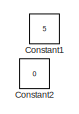
[diagram: root canvas - part 1/6, top left region]
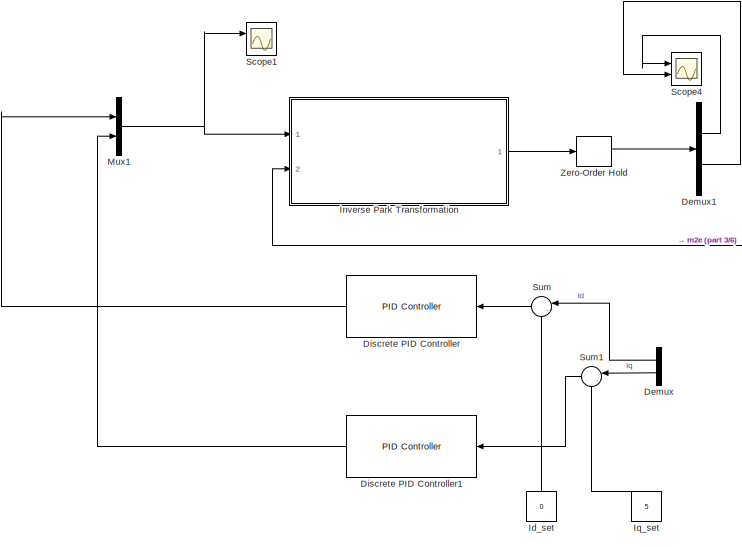
[diagram: root canvas - part 2/6, top center region]
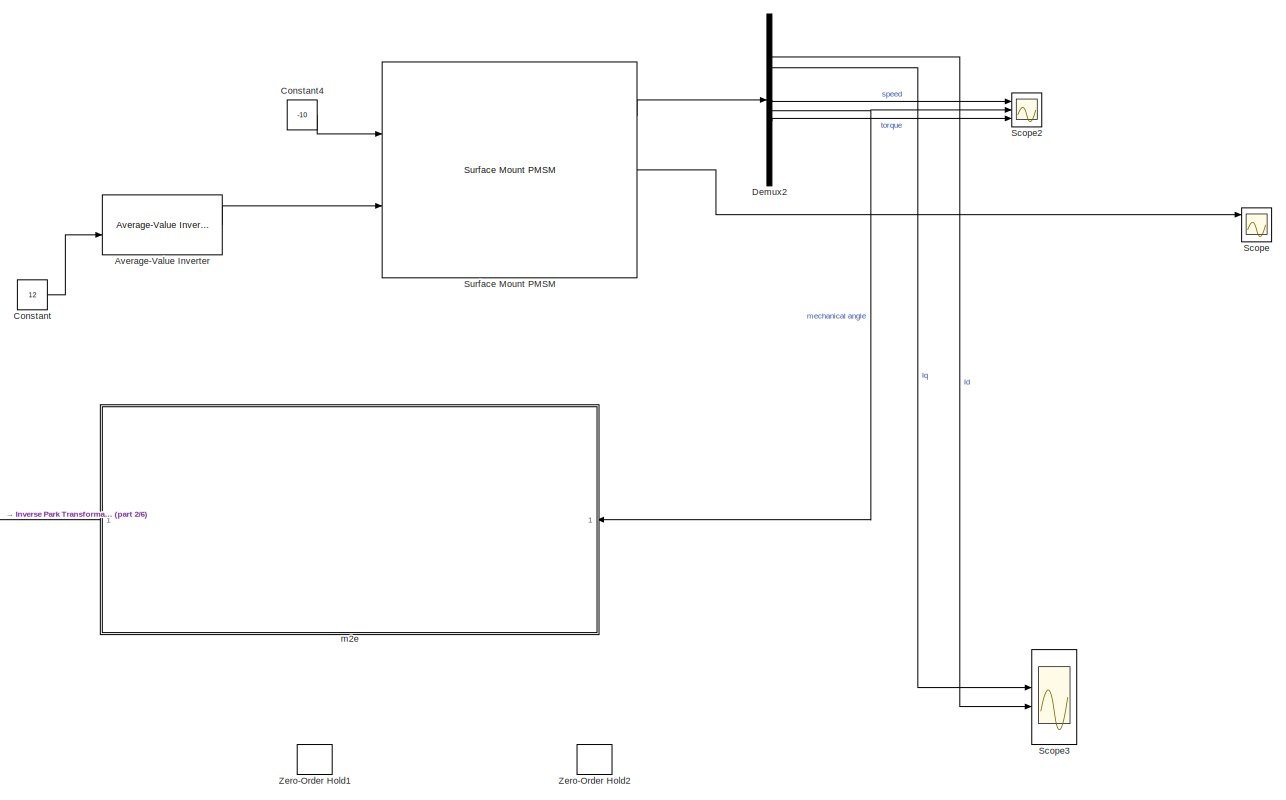
[diagram: root canvas - part 3/6, top right region]
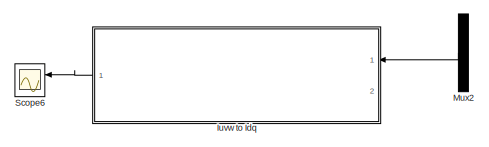
[diagram: root canvas - part 4/6, central region]
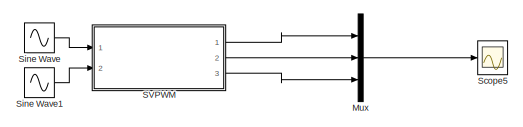
[diagram: root canvas - part 5/6, bottom left region]
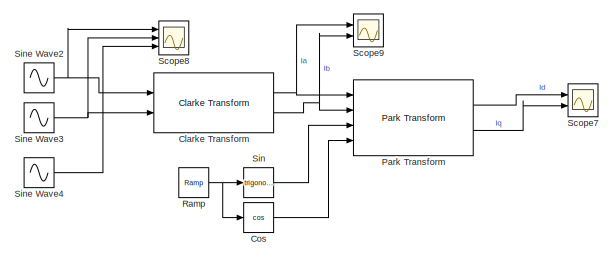
[diagram: root canvas - part 6/6, bottom center region]
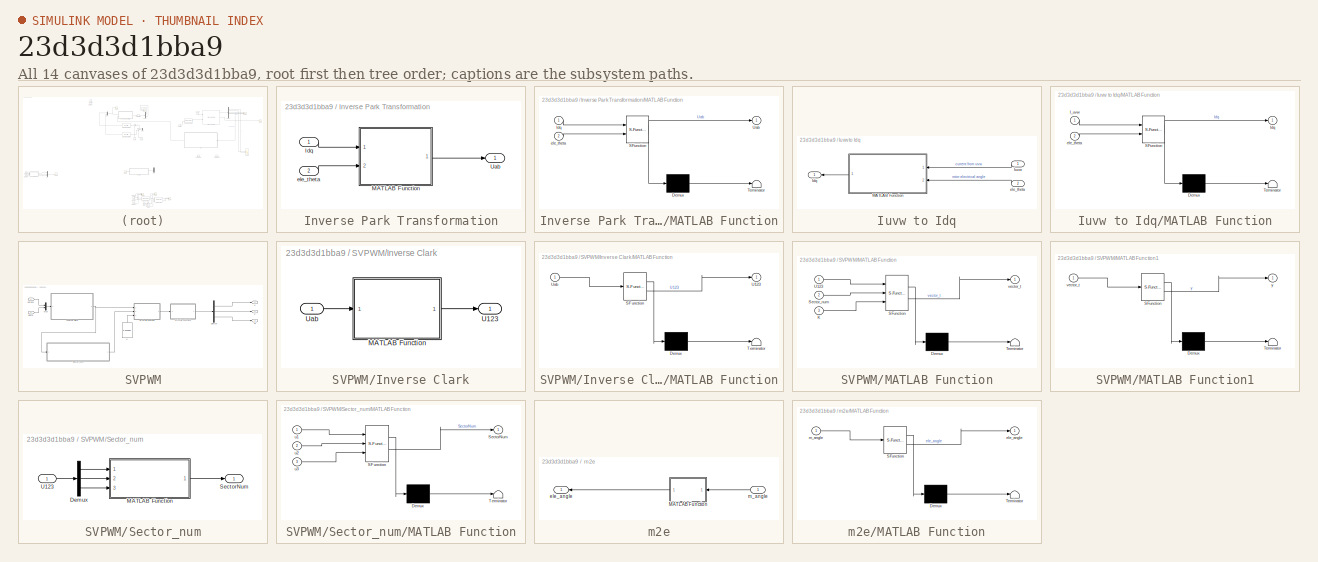
[diagram: thumbnail index - all 14 canvases of the model, root first then tree order]
MODEL slx_23d3d3d1bba9
KIND model
CONFIG AbsTol = auto
CONFIG EnableMultiTasking = off
CONFIG FixedStep = auto
CONFIG MaxStep = auto
CONFIG MinStep = auto
CONFIG RelTol = 1e-3
CONFIG SampleTimeConstraint = Unconstrained
CONFIG SolverName = VariableStepAuto
CONFIG StartTime = 0.0
CONFIG StopTime = 10.0
BLOCK [Reference] Average-Value Inverter  REF=mcbplantlib/Average-Value Inverter
  Ports = [2, 1]
  SourceBlock = mcbplantlib/Average-Value Inverter
  SourceProductBaseCode = MT
  SourceType = Average-Value Inverter
BLOCK [Reference] Clarke Transform  REF=mcbcontrolslib/Clarke Transform
  Ports = [2, 2]
  SourceBlock = mcbcontrolslib/Clarke Transform
  SourceProductBaseCode = MT
  SourceType = Clarke Transform
BLOCK [Constant] Constant
  Value = 12
BLOCK [Constant] Constant1
  Value = 5
BLOCK [Constant] Constant2
  Value = 0
BLOCK [Constant] Constant4
  Value = -10
BLOCK [Trigonometry] Cos
  Operator = cos
  Ports = [1, 1]
BLOCK [Demux] Demux
  Outputs = 2
  Ports = [1, 2]
BLOCK [Demux] Demux1
  Outputs = 2
  Ports = [1, 2]
BLOCK [Demux] Demux2
  Outputs = 15
  Ports = [1, 15]
BLOCK [Reference] Discrete PID Controller  REF=pid_lib/PID Controller
  Ports = [1, 1]
  SourceBlock = pid_lib/PID Controller
  SourceProductBaseCode = SL
  SourceType = PID 1dof
BLOCK [Reference] Discrete PID Controller1  REF=pid_lib/PID Controller
  Ports = [1, 1]
  SourceBlock = pid_lib/PID Controller
  SourceProductBaseCode = SL
  SourceType = PID 1dof
BLOCK [Constant] Id_set
  NameLocation = left
  Value = 0
BLOCK [SubSystem] Inverse Park Transformation
  Ports = [2, 1]
  RequestExecContextInheritance = off
BLOCK [Inport] Inverse Park Transformation/Idq
BLOCK [SubSystem] Inverse Park Transformation/MATLAB Function
  ErrorFcn = Stateflow.Translate.translate
  PermitHierarchicalResolution = ExplicitOnly
  Ports = [2, 1]
  RequestExecContextInheritance = off
  SFBlockType = MATLAB Function
  TreatAsAtomicUnit = on
BLOCK [Demux] Inverse Park Transformation/MATLAB Function/ Demux 
  Outputs = 1
  Ports = [1, 1]
BLOCK [S-Function] Inverse Park Transformation/MATLAB Function/ SFunction 
  EnableBusSupport = on
  FunctionName = sf_sfun
  PortCounts = [2 2]
  Ports = [2, 2]
  SFcnIsStateOwnerBlock = off
  SFunctionDeploymentMode = off
  Tag = Stateflow S-Function 1
BLOCK [Terminator] Inverse Park Transformation/MATLAB Function/ Terminator 
BLOCK [Inport] Inverse Park Transformation/MATLAB Function/Idq
BLOCK [Outport] Inverse Park Transformation/MATLAB Function/Uab
BLOCK [Inport] Inverse Park Transformation/MATLAB Function/ele_theta
  Port = 2
BLOCK [Outport] Inverse Park Transformation/Uab
BLOCK [Inport] Inverse Park Transformation/ele_theta
  Port = 2
BLOCK [Constant] Iq_set
  NameLocation = left
  Value = 5
BLOCK [SubSystem] Iuvw to Idq
  Ports = [2, 1]
  RequestExecContextInheritance = off
BLOCK [Outport] Iuvw to Idq/Idq
BLOCK [Inport] Iuvw to Idq/Iuvw
BLOCK [SubSystem] Iuvw to Idq/MATLAB Function
  ErrorFcn = Stateflow.Translate.translate
  PermitHierarchicalResolution = ExplicitOnly
  Ports = [2, 1]
  RequestExecContextInheritance = off
  SFBlockType = MATLAB Function
  TreatAsAtomicUnit = on
BLOCK [Demux] Iuvw to Idq/MATLAB Function/ Demux 
  Outputs = 1
  Ports = [1, 1]
BLOCK [S-Function] Iuvw to Idq/MATLAB Function/ SFunction 
  EnableBusSupport = on
  FunctionName = sf_sfun
  PortCounts = [2 2]
  Ports = [2, 2]
  SFcnIsStateOwnerBlock = off
  SFunctionDeploymentMode = off
  Tag = Stateflow S-Function 2
BLOCK [Terminator] Iuvw to Idq/MATLAB Function/ Terminator 
BLOCK [Inport] Iuvw to Idq/MATLAB Function/I_uvw
BLOCK [Outport] Iuvw to Idq/MATLAB Function/Idq
BLOCK [Inport] Iuvw to Idq/MATLAB Function/ele_theta
  Port = 2
BLOCK [Inport] Iuvw to Idq/ele_theta
  Port = 2
BLOCK [Mux] Mux
  DisplayOption = bar
  Inputs = 3
  Ports = [3, 1]
BLOCK [Mux] Mux1
  DisplayOption = bar
  Inputs = 2
  Ports = [2, 1]
BLOCK [Mux] Mux2
  DisplayOption = bar
  Inputs = 3
  NameLocation = top
  Ports = [3, 1]
BLOCK [Reference] Park Transform  REF=mcbcontrolslib/Park Transform
  Ports = [4, 2]
  SourceBlock = mcbcontrolslib/Park Transform
  SourceProductBaseCode = MT
  SourceType = Park Transform
BLOCK [Reference] Ramp  REF=simulink/Sources/Ramp
  Ports = [0, 1]
  SourceBlock = simulink/Sources/Ramp
  SourceProductBaseCode = SL
  SourceType = Ramp
BLOCK [SubSystem] SVPWM
  Ports = [2, 3]
  RequestExecContextInheritance = off
BLOCK [Demux] SVPWM/Demux
  Outputs = 3
  Ports = [1, 3]
BLOCK [SubSystem] SVPWM/Inverse Clark
  Ports = [1, 1]
  RequestExecContextInheritance = off
BLOCK [SubSystem] SVPWM/Inverse Clark/MATLAB Function
  ErrorFcn = Stateflow.Translate.translate
  PermitHierarchicalResolution = ExplicitOnly
  Ports = [1, 1]
  RequestExecContextInheritance = off
  SFBlockType = MATLAB Function
  TreatAsAtomicUnit = on
BLOCK [Demux] SVPWM/Inverse Clark/MATLAB Function/ Demux 
  Outputs = 1
  Ports = [1, 1]
BLOCK [S-Function] SVPWM/Inverse Clark/MATLAB Function/ SFunction 
  EnableBusSupport = on
  FunctionName = sf_sfun
  PortCounts = [1 2]
  Ports = [1, 2]
  SFcnIsStateOwnerBlock = off
  SFunctionDeploymentMode = off
  Tag = Stateflow S-Function 4
BLOCK [Terminator] SVPWM/Inverse Clark/MATLAB Function/ Terminator 
BLOCK [Outport] SVPWM/Inverse Clark/MATLAB Function/U123
BLOCK [Inport] SVPWM/Inverse Clark/MATLAB Function/Uab
BLOCK [Outport] SVPWM/Inverse Clark/U123
BLOCK [Inport] SVPWM/Inverse Clark/Uab
BLOCK [Constant] SVPWM/K
  NameLocation = left
  Value = 0.144337
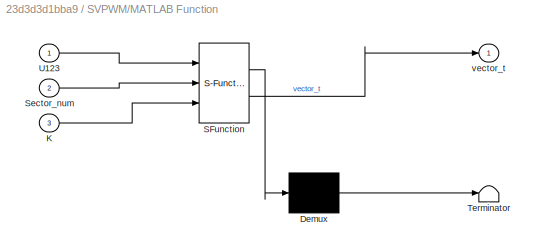
BLOCK [SubSystem] SVPWM/MATLAB Function
  ErrorFcn = Stateflow.Translate.translate
  PermitHierarchicalResolution = ExplicitOnly
  Ports = [3, 1]
  RequestExecContextInheritance = off
  SFBlockType = MATLAB Function
  TreatAsAtomicUnit = on
BLOCK [Demux] SVPWM/MATLAB Function/ Demux 
  Outputs = 1
  Ports = [1, 1]
BLOCK [S-Function] SVPWM/MATLAB Function/ SFunction 
  EnableBusSupport = on
  FunctionName = sf_sfun
  PortCounts = [3 2]
  Ports = [3, 2]
  SFcnIsStateOwnerBlock = off
  SFunctionDeploymentMode = off
  Tag = Stateflow S-Function 3
BLOCK [Terminator] SVPWM/MATLAB Function/ Terminator 
BLOCK [Inport] SVPWM/MATLAB Function/K
  Port = 3
BLOCK [Inport] SVPWM/MATLAB Function/Sector_num
  Port = 2
BLOCK [Inport] SVPWM/MATLAB Function/U123
BLOCK [Outport] SVPWM/MATLAB Function/vector_t
BLOCK [SubSystem] SVPWM/MATLAB Function1
  ErrorFcn = Stateflow.Translate.translate
  PermitHierarchicalResolution = ExplicitOnly
  Ports = [1, 1]
  RequestExecContextInheritance = off
  SFBlockType = MATLAB Function
  TreatAsAtomicUnit = on
BLOCK [Demux] SVPWM/MATLAB Function1/ Demux 
  Outputs = 1
  Ports = [1, 1]
BLOCK [S-Function] SVPWM/MATLAB Function1/ SFunction 
  EnableBusSupport = on
  FunctionName = sf_sfun
  PortCounts = [1 2]
  Ports = [1, 2]
  SFcnIsStateOwnerBlock = off
  SFunctionDeploymentMode = off
  Tag = Stateflow S-Function 6
BLOCK [Terminator] SVPWM/MATLAB Function1/ Terminator 
BLOCK [Inport] SVPWM/MATLAB Function1/vector_t
BLOCK [Outport] SVPWM/MATLAB Function1/y
BLOCK [Mux] SVPWM/Mux
  DisplayOption = bar
  Inputs = 2
  Ports = [2, 1]
BLOCK [SubSystem] SVPWM/Sector_num
  Ports = [1, 1]
  RequestExecContextInheritance = off
BLOCK [Demux] SVPWM/Sector_num/Demux
  Outputs = 3
  Ports = [1, 3]
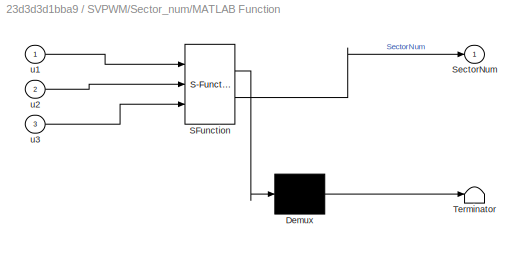
BLOCK [SubSystem] SVPWM/Sector_num/MATLAB Function
  ErrorFcn = Stateflow.Translate.translate
  PermitHierarchicalResolution = ExplicitOnly
  Ports = [3, 1]
  RequestExecContextInheritance = off
  SFBlockType = MATLAB Function
  TreatAsAtomicUnit = on
BLOCK [Demux] SVPWM/Sector_num/MATLAB Function/ Demux 
  Outputs = 1
  Ports = [1, 1]
BLOCK [S-Function] SVPWM/Sector_num/MATLAB Function/ SFunction 
  EnableBusSupport = on
  FunctionName = sf_sfun
  PortCounts = [3 2]
  Ports = [3, 2]
  SFcnIsStateOwnerBlock = off
  SFunctionDeploymentMode = off
  Tag = Stateflow S-Function 5
BLOCK [Terminator] SVPWM/Sector_num/MATLAB Function/ Terminator 
BLOCK [Outport] SVPWM/Sector_num/MATLAB Function/SectorNum
BLOCK [Inport] SVPWM/Sector_num/MATLAB Function/u1
BLOCK [Inport] SVPWM/Sector_num/MATLAB Function/u2
  Port = 2
BLOCK [Inport] SVPWM/Sector_num/MATLAB Function/u3
  Port = 3
BLOCK [Outport] SVPWM/Sector_num/SectorNum
BLOCK [Inport] SVPWM/Sector_num/U123
BLOCK [Outport] SVPWM/U
BLOCK [Inport] SVPWM/Uarpha
BLOCK [Inport] SVPWM/Ubeta
  Port = 2
BLOCK [Outport] SVPWM/V
  Port = 2
BLOCK [Outport] SVPWM/W
  Port = 3
BLOCK [Scope] Scope
  Floating = off
  NumInputPorts = 4
  Ports = [4]
  ScopeSpecificationString = Simulink.scopes.TimeScopeBlockCfg('CurrentConfiguration', extmgr.ConfigurationSet(extmgr.Configuration('Core','General UI',true),extmgr.Configuration('Core','Source UI',true),extmgr.Configuration('Sources','WiredSimulink',true),extmgr.Configuration('Visuals','Time Domain',true,'SerializedDisplays',{struct('MinYLimReal','7.49075','MaxYLimReal','7.89147','YLabelReal','','MinYLimMag','7.49075','MaxYL...<+1858ch>
BLOCK [Scope] Scope1
  Floating = off
  NumInputPorts = 2
  Ports = [2]
  ScopeSpecificationString = Simulink.scopes.TimeScopeBlockCfg('CurrentConfiguration', extmgr.ConfigurationSet(extmgr.Configuration('Core','General UI',true),extmgr.Configuration('Core','Source UI',true),extmgr.Configuration('Sources','WiredSimulink',true,'DataLoggingVariableName','ScopeData1'),extmgr.Configuration('Visuals','Time Domain',true,'SerializedDisplays',{struct('MinYLimReal','-0.73114','MaxYLimReal','5.59023','YLab...<+1845ch>
BLOCK [Scope] Scope2
  Floating = off
  NumInputPorts = 3
  Ports = [3]
  ScopeSpecificationString = Simulink.scopes.TimeScopeBlockCfg('CurrentConfiguration', extmgr.ConfigurationSet(extmgr.Configuration('Core','General UI',true),extmgr.Configuration('Core','Source UI',true),extmgr.Configuration('Sources','WiredSimulink',true,'DataLoggingVariableName','ScopeData2'),extmgr.Configuration('Visuals','Time Domain',true,'SerializedDisplays',{struct('MinYLimReal','-6.62451','MaxYLimReal','4.22564','YLab...<+1837ch>
BLOCK [Scope] Scope3
  Floating = off
  NumInputPorts = 4
  Ports = [4]
  ScopeSpecificationString = Simulink.scopes.TimeScopeBlockCfg('CurrentConfiguration', extmgr.ConfigurationSet(extmgr.Configuration('Core','General UI',true),extmgr.Configuration('Core','Source UI',true),extmgr.Configuration('Sources','WiredSimulink',true,'DataLoggingVariableName','ScopeData3'),extmgr.Configuration('Visuals','Time Domain',true,'SerializedDisplays',{struct('MinYLimReal','-8.52747','MaxYLimReal','1.22597','YLab...<+1807ch>
BLOCK [Scope] Scope4
  Floating = off
  NumInputPorts = 2
  Ports = [2]
  ScopeSpecificationString = Simulink.scopes.TimeScopeBlockCfg('CurrentConfiguration', extmgr.ConfigurationSet(extmgr.Configuration('Core','General UI',true),extmgr.Configuration('Core','Source UI',true),extmgr.Configuration('Sources','WiredSimulink',true,'DataLoggingVariableName','ScopeData4'),extmgr.Configuration('Visuals','Time Domain',true,'SerializedDisplays',{struct('MinYLimReal','-1.25','MaxYLimReal','1.25','YLabelReal...<+1789ch>
BLOCK [Scope] Scope5
  Floating = off
  NumInputPorts = 1
  Ports = [1]
  ScopeSpecificationString = Simulink.scopes.TimeScopeBlockCfg('CurrentConfiguration', extmgr.ConfigurationSet(extmgr.Configuration('Core','General UI',true,'FigureColor',[1 1 1]),extmgr.Configuration('Core','Source UI',true),extmgr.Configuration('Sources','WiredSimulink',true,'DataLoggingVariableName','ScopeData1'),extmgr.Configuration('Visuals','Time Domain',true,'TimeAxisLabels','All','SerializedDisplays',{struct('MinYLimR...<+1855ch>
BLOCK [Scope] Scope6
  Floating = off
  NumInputPorts = 2
  Ports = [2]
  ScopeSpecificationString = Simulink.scopes.TimeScopeBlockCfg('CurrentConfiguration', extmgr.ConfigurationSet(extmgr.Configuration('Core','General UI',true),extmgr.Configuration('Core','Source UI',true),extmgr.Configuration('Sources','WiredSimulink',true,'DataLoggingVariableName','ScopeData1'),extmgr.Configuration('Visuals','Time Domain',true,'SerializedDisplays',{struct('MinYLimReal','-1.25','MaxYLimReal','1.08862','YLabelR...<+1507ch>
BLOCK [Scope] Scope7
  Floating = off
  NumInputPorts = 2
  Ports = [2]
  ScopeSpecificationString = Simulink.scopes.TimeScopeBlockCfg('CurrentConfiguration', extmgr.ConfigurationSet(extmgr.Configuration('Core','General UI',true,'FigureColor',[1 1 1]),extmgr.Configuration('Core','Source UI',true),extmgr.Configuration('Sources','WiredSimulink',true,'DataLoggingVariableName','ScopeData2'),extmgr.Configuration('Visuals','Time Domain',true,'SerializedDisplays',{struct('MinYLimReal','-0.125','MaxYLimR...<+1685ch>
BLOCK [Scope] Scope8
  Floating = off
  NumInputPorts = 3
  Ports = [3]
  ScopeSpecificationString = Simulink.scopes.TimeScopeBlockCfg('CurrentConfiguration', extmgr.ConfigurationSet(extmgr.Configuration('Core','General UI',true,'FigureColor',[1 1 1]),extmgr.Configuration('Core','Source UI',true),extmgr.Configuration('Sources','WiredSimulink',true,'DataLoggingVariableName','ScopeData3'),extmgr.Configuration('Visuals','Time Domain',true,'SerializedDisplays',{struct('MinYLimReal','-1.25','MaxYLimRe...<+1906ch>
BLOCK [Scope] Scope9
  Floating = off
  NumInputPorts = 2
  Ports = [2]
  ScopeSpecificationString = Simulink.scopes.TimeScopeBlockCfg('CurrentConfiguration', extmgr.ConfigurationSet(extmgr.Configuration('Core','General UI',true,'FigureColor',[1 1 1]),extmgr.Configuration('Core','Source UI',true),extmgr.Configuration('Sources','WiredSimulink',true,'DataLoggingVariableName','ScopeData4'),extmgr.Configuration('Visuals','Time Domain',true,'SerializedDisplays',{struct('MinYLimReal','-1.25','MaxYLimRe...<+1731ch>
BLOCK [Trigonometry] Sin
  Ports = [1, 1]
BLOCK [Sin] Sine Wave
  Amplitude = 2
  Frequency = 3
  Ports = [0, 1]
  SampleTime = 0.01
BLOCK [Sin] Sine Wave1
  Amplitude = 2
  Frequency = 3
  Phase = pi/2
  Ports = [0, 1]
  SampleTime = 0.01
BLOCK [Sin] Sine Wave2
  Frequency = 2*pi
  NameLocation = top
  Ports = [0, 1]
  SampleTime = 0
BLOCK [Sin] Sine Wave3
  Frequency = 2*pi
  NameLocation = top
  Phase = 2*pi/3
  Ports = [0, 1]
  SampleTime = 0
BLOCK [Sin] Sine Wave4
  Frequency = 2*pi
  NameLocation = top
  Phase = 4*pi/3
  Ports = [0, 1]
  SampleTime = 0
BLOCK [Sum] Sum
  Inputs = |-+
  Ports = [2, 1]
BLOCK [Sum] Sum1
  Inputs = |-+
  Ports = [2, 1]
BLOCK [Reference] Surface Mount PMSM  REF=autolibpmsmexterior/Surface Mount PMSM
  Ports = [2, 3]
  SourceBlock = autolibpmsmexterior/Surface Mount PMSM
  SourceProductBaseCode = PW,DR,MT,UV,VE
  SourceType = Surface Mount PMSM
BLOCK [ZeroOrderHold] Zero-Order Hold
  SampleTime = 0.0005
BLOCK [ZeroOrderHold] Zero-Order Hold1
  SampleTime = 0.0005
BLOCK [ZeroOrderHold] Zero-Order Hold2
  SampleTime = 0.0005
BLOCK [SubSystem] m2e
  Ports = [1, 1]
  RequestExecContextInheritance = off
BLOCK [SubSystem] m2e/MATLAB Function
  ErrorFcn = Stateflow.Translate.translate
  PermitHierarchicalResolution = ExplicitOnly
  Ports = [1, 1]
  RequestExecContextInheritance = off
  SFBlockType = MATLAB Function
  TreatAsAtomicUnit = on
BLOCK [Demux] m2e/MATLAB Function/ Demux 
  Outputs = 1
  Ports = [1, 1]
BLOCK [S-Function] m2e/MATLAB Function/ SFunction 
  EnableBusSupport = on
  FunctionName = sf_sfun
  PortCounts = [1 2]
  Ports = [1, 2]
  SFcnIsStateOwnerBlock = off
  SFunctionDeploymentMode = off
  Tag = Stateflow S-Function 7
BLOCK [Terminator] m2e/MATLAB Function/ Terminator 
BLOCK [Outport] m2e/MATLAB Function/ele_angle
BLOCK [Inport] m2e/MATLAB Function/m_angle
BLOCK [Outport] m2e/ele_angle
BLOCK [Inport] m2e/m_angle
LINE Average-Value Inverter:1 -> Surface Mount PMSM:2
NET Clarke Transform:1 -> Park Transform:1, Scope9:1
NET Clarke Transform:2 -> Park Transform:2, Scope9:2
LINE Constant4:1 -> Surface Mount PMSM:1
LINE Constant:1 -> Average-Value Inverter:2
LINE Cos:1 -> Park Transform:4
LINE Demux1:1 -> Scope4:1
LINE Demux1:2 -> Scope4:2
LINE Demux2:10 -> Scope2:3
LINE Demux2:4 -> Scope3:3
LINE Demux2:5 -> Scope3:2
LINE Demux2:8 -> Scope2:1
NET Demux2:9 -> Scope2:2, m2e:1
LINE Demux:1 -> Sum:1
LINE Demux:2 -> Sum1:1
LINE Discrete PID Controller1:1 -> Mux1:2
LINE Discrete PID Controller:1 -> Mux1:1
LINE Id_set:1 -> Sum:2
LINE Inverse Park Transformation/Idq:1 -> Inverse Park Transformation/MATLAB Function:1
LINE Inverse Park Transformation/MATLAB Function:1 -> Inverse Park Transformation/Uab:1
LINE Inverse Park Transformation/ele_theta:1 -> Inverse Park Transformation/MATLAB Function:2
LINE Inverse Park Transformation:1 -> Zero-Order Hold:1
LINE Iq_set:1 -> Sum1:2
LINE Iuvw to Idq/Iuvw:1 -> Iuvw to Idq/MATLAB Function:1
LINE Iuvw to Idq/MATLAB Function:1 -> Iuvw to Idq/Idq:1
LINE Iuvw to Idq/ele_theta:1 -> Iuvw to Idq/MATLAB Function:2
LINE Iuvw to Idq:1 -> Scope6:1
NET Mux1:1 -> Inverse Park Transformation:1, Scope1:1
LINE Mux2:1 -> Iuvw to Idq:1
LINE Mux:1 -> Scope5:1
LINE Park Transform:1 -> Scope7:1
LINE Park Transform:2 -> Scope7:2
NET Ramp:1 -> Cos:1, Sin:1
LINE SVPWM/Demux:1 -> SVPWM/U:1
LINE SVPWM/Demux:2 -> SVPWM/V:1
LINE SVPWM/Demux:3 -> SVPWM/W:1
LINE SVPWM/Inverse Clark/MATLAB Function:1 -> SVPWM/Inverse Clark/U123:1
LINE SVPWM/Inverse Clark/Uab:1 -> SVPWM/Inverse Clark/MATLAB Function:1
NET SVPWM/Inverse Clark:1 -> SVPWM/MATLAB Function:1, SVPWM/Sector_num:1
LINE SVPWM/K:1 -> SVPWM/MATLAB Function:3
LINE SVPWM/MATLAB Function1:1 -> SVPWM/Demux:1
LINE SVPWM/MATLAB Function:1 -> SVPWM/MATLAB Function1:1
LINE SVPWM/Mux:1 -> SVPWM/Inverse Clark:1
LINE SVPWM/Sector_num/Demux:1 -> SVPWM/Sector_num/MATLAB Function:1
LINE SVPWM/Sector_num/Demux:2 -> SVPWM/Sector_num/MATLAB Function:2
LINE SVPWM/Sector_num/Demux:3 -> SVPWM/Sector_num/MATLAB Function:3
LINE SVPWM/Sector_num/MATLAB Function:1 -> SVPWM/Sector_num/SectorNum:1
LINE SVPWM/Sector_num/U123:1 -> SVPWM/Sector_num/Demux:1
LINE SVPWM/Sector_num:1 -> SVPWM/MATLAB Function:2
LINE SVPWM/Uarpha:1 -> SVPWM/Mux:1
LINE SVPWM/Ubeta:1 -> SVPWM/Mux:2
LINE SVPWM:1 -> Mux:1
LINE SVPWM:2 -> Mux:2
LINE SVPWM:3 -> Mux:3
LINE Sin:1 -> Park Transform:3
LINE Sine Wave1:1 -> SVPWM:2
NET Sine Wave2:1 -> Clarke Transform:1, Scope8:1
NET Sine Wave3:1 -> Clarke Transform:2, Scope8:2
LINE Sine Wave4:1 -> Scope8:3
LINE Sine Wave:1 -> SVPWM:1
LINE Sum1:1 -> Discrete PID Controller1:1
LINE Sum:1 -> Discrete PID Controller:1
LINE Surface Mount PMSM:1 -> Demux2:1
LINE Surface Mount PMSM:2 -> Scope:1
LINE Zero-Order Hold:1 -> Demux1:1
LINE m2e/MATLAB Function:1 -> m2e/ele_angle:1
LINE m2e/m_angle:1 -> m2e/MATLAB Function:1
LINE m2e:1 -> Inverse Park Transformation:2
note: NET lines group one-source signal fan-out (src -> all destinations, sorted); 1:1 wires keep LINE
CHART Iuvw to Idq/MATLAB Function states=1 transitions=1
  STATE_LABEL 'eML_blk_kernel()'
  STATE_LABEL 'SCRIPT:\nfunction Idq = fcn(I_uvw,ele_theta)\n    cos_theta = cos(ele_theta);\n    sin_theta = sin(ele_theta);\nIdq =2/3* [cos_theta, -0.5*cos_theta+0.866*sin_theta, -0.866*sin_theta-0.5*cos_theta;\n     -sin_theta, 0.5*sin_theta+0.866*cos_theta,  -0.866*cos_theta+0.5*sin_theta]*I_uvw;\n'
CHART SVPWM/MATLAB Function states=1 transitions=1
  STATE_LABEL 'eML_blk_kernel()'
  STATE_LABEL 'SCRIPT:\nfunction vector_t= fcn(U123,Sector_num,K)\ns_num = uint8(Sector_num);\nvector_t = zeros(7,1);\nvctable=[2,1;3,2;1,3;2,1;3,2;1,3];\ntemp1 = abs((K*U123(vctable(s_num,1),1)));\ntemp2 = abs(K*U123(vctable(s_num,2),1));\nvector_t(s_num,1) = temp1;\nvector_t((mod(s_num,6)+1),1) = temp2;\nvector_t(7,1) = 0.5*(1-temp1-temp2);'
CHART SVPWM/Inverse Clark/MATLAB Function states=1 transitions=1
  STATE_LABEL 'eML_blk_kernel()'
  STATE_LABEL 'SCRIPT:\nfunction U123 = fcn(Uab)\n\nU123 = [0,1;0.866,-0.5;-0.866,-0.5]*Uab;\n'
CHART SVPWM/Sector_num/MATLAB Function states=1 transitions=1
  STATE_LABEL 'eML_blk_kernel()'
  STATE_LABEL 'SCRIPT:\nfunction SectorNum = fcn(u1,u2,u3)\nif u1>0\n    A=1;\nelse \n    A=0;\nend\nif u2>0\n    B=1;\nelse \n    B=0;\nend\nif u3>0\n    C=1;\nelse \n    C=0;\nend\nN = 4 * C + 2 * B + A;\nN2Sector = [2,6,1,4,3,5];\nSectorNum = N2Sector(1,N);\n\n'
CHART SVPWM/MATLAB Function1 states=1 transitions=1
  STATE_LABEL 'eML_blk_kernel()'
  STATE_LABEL 'SCRIPT:\nfunction y = fcn(vector_t)\nV2T_Table=[1,1,0,0,0,1,1;\n           0,1,1,1,0,0,1;\n           0,0,0,1,1,1,1];\ny = V2T_Table*vector_t;\n'
CHART m2e/MATLAB Function states=1 transitions=1
  STATE_LABEL 'eML_blk_kernel()'
  STATE_LABEL 'SCRIPT:\nfunction ele_angle = fcn(m_angle)\n\nele_angle = mod(m_angle*11,2*pi);\n'
CHART Inverse Park Transformation/MATLAB Function states=1 transitions=1
  STATE_LABEL 'eML_blk_kernel()'
  STATE_LABEL 'SCRIPT:\nfunction Uab = fcn(Idq,ele_theta)\n    cos_theta = cos(ele_theta);\n    sin_theta = sin(ele_theta);\nUab = [-sin_theta,cos_theta;\n       cos_theta,sin_theta]*Idq;\n'
CHART  states=0 transitions=0
CHART  states=0 transitions=0
CHART  states=0 transitions=0
CHART  states=0 transitions=0
CHART  states=0 transitions=0
CHART  states=0 transitions=0
CHART  states=0 transitions=0
